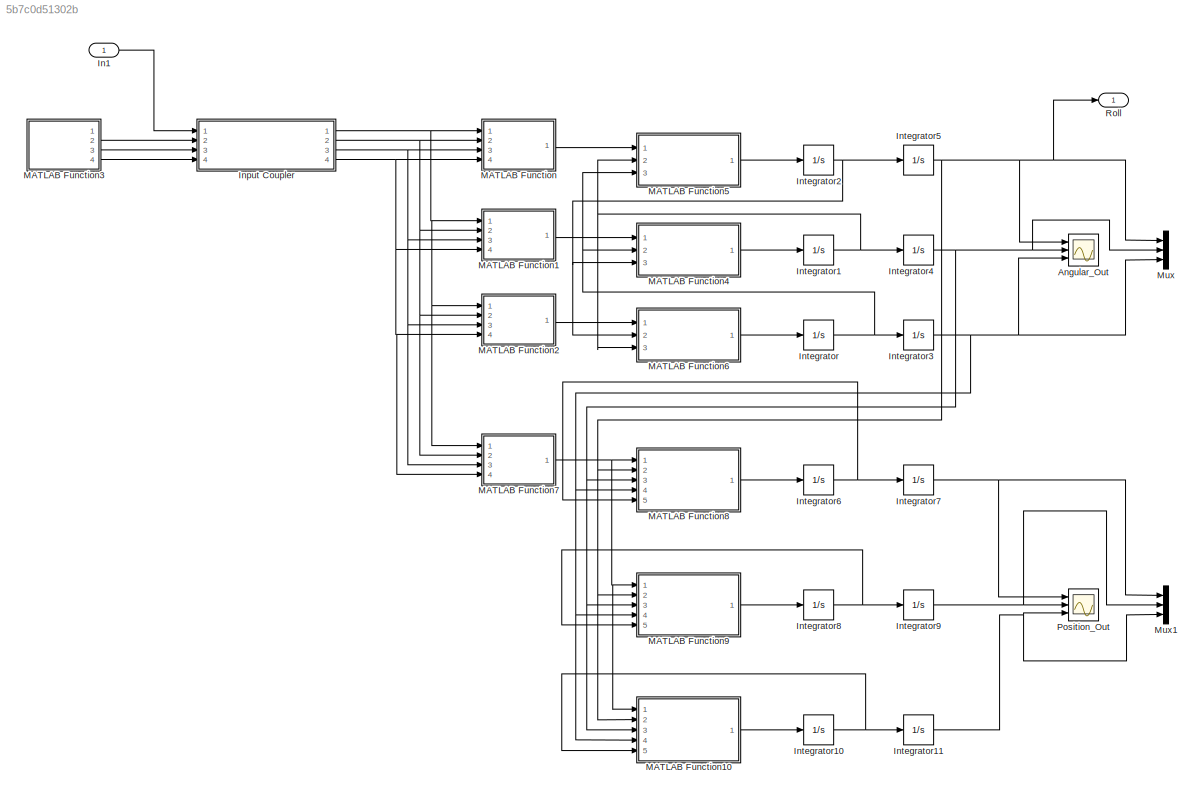
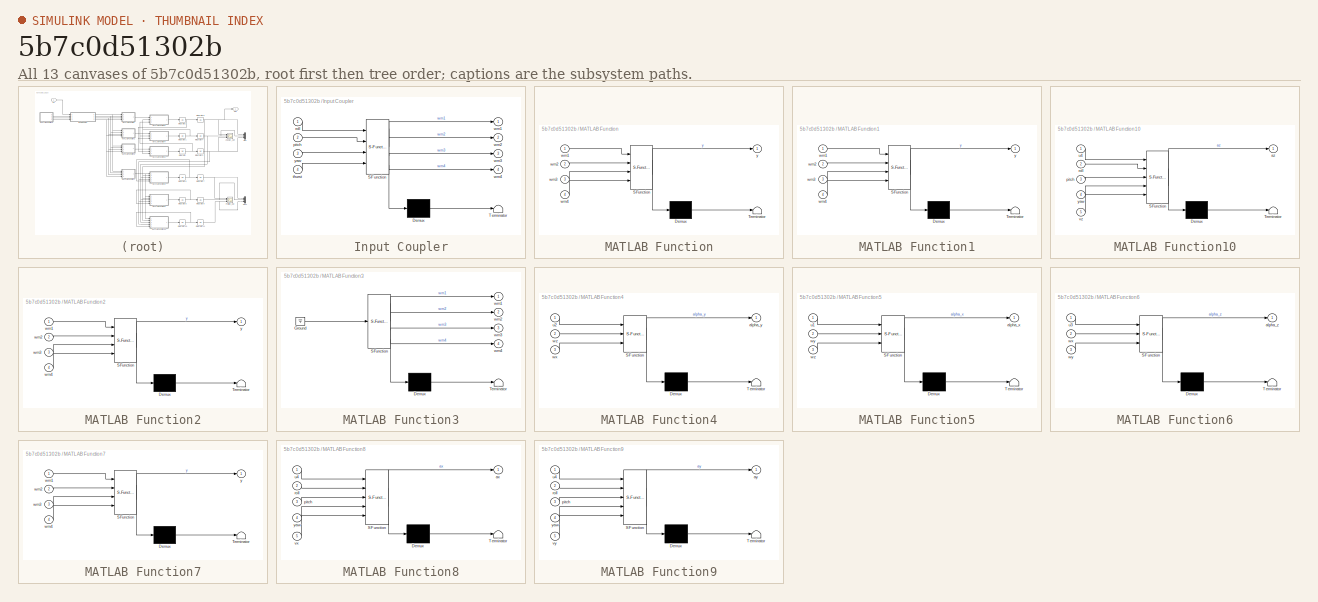
[diagram: thumbnail index - all 13 canvases of the model, root first then tree order]
MODEL slx_5b7c0d51302b
KIND model
BLOCK [Scope] Angular_Out
  Floating = off
  NumInputPorts = 3
  Ports = [3]
  ShowLegends = off
  YMax = 5~5~5
  YMin = -5~-5~-5
BLOCK [Inport] In1
  IconDisplay = Port number
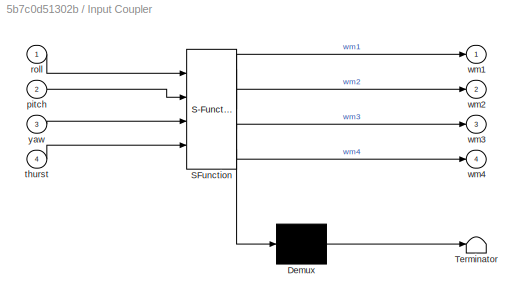
BLOCK [SubSystem] Input Coupler
  ErrorFcn = Stateflow.Translate.translate
  PermitHierarchicalResolution = ExplicitOnly
  Ports = [4, 4]
  RequestExecContextInheritance = off
  SFBlockType = MATLAB Function
  TreatAsAtomicUnit = on
BLOCK [Demux] Input Coupler/ Demux 
  Outputs = 1
  Ports = [1, 1]
BLOCK [S-Function] Input Coupler/ SFunction 
  EnableBusSupport = on
  FunctionName = sf_sfun
  PortCounts = [4 5]
  Ports = [4, 5]
  Tag = Stateflow S-Function quad_x_model 4
BLOCK [Terminator] Input Coupler/ Terminator 
BLOCK [Inport] Input Coupler/pitch
  IconDisplay = Port number
  Port = 2
BLOCK [Inport] Input Coupler/roll
  IconDisplay = Port number
BLOCK [Inport] Input Coupler/thurst
  IconDisplay = Port number
  Port = 4
BLOCK [Outport] Input Coupler/wm1
  IconDisplay = Port number
BLOCK [Outport] Input Coupler/wm2
  IconDisplay = Port number
  Port = 2
BLOCK [Outport] Input Coupler/wm3
  IconDisplay = Port number
  Port = 3
BLOCK [Outport] Input Coupler/wm4
  IconDisplay = Port number
  Port = 4
BLOCK [Inport] Input Coupler/yaw
  IconDisplay = Port number
  Port = 3
BLOCK [Integrator] Integrator
  Ports = [1, 1]
BLOCK [Integrator] Integrator1
  Ports = [1, 1]
BLOCK [Integrator] Integrator10
  Ports = [1, 1]
BLOCK [Integrator] Integrator11
  Ports = [1, 1]
BLOCK [Integrator] Integrator2
  Ports = [1, 1]
BLOCK [Integrator] Integrator3
  Ports = [1, 1]
BLOCK [Integrator] Integrator4
  Ports = [1, 1]
BLOCK [Integrator] Integrator5
  Ports = [1, 1]
BLOCK [Integrator] Integrator6
  Ports = [1, 1]
BLOCK [Integrator] Integrator7
  Ports = [1, 1]
BLOCK [Integrator] Integrator8
  Ports = [1, 1]
BLOCK [Integrator] Integrator9
  Ports = [1, 1]
BLOCK [SubSystem] MATLAB Function
  ErrorFcn = Stateflow.Translate.translate
  PermitHierarchicalResolution = ExplicitOnly
  Ports = [4, 1]
  RequestExecContextInheritance = off
  SFBlockType = MATLAB Function
  TreatAsAtomicUnit = on
BLOCK [Demux] MATLAB Function/ Demux 
  Outputs = 1
  Ports = [1, 1]
BLOCK [S-Function] MATLAB Function/ SFunction 
  EnableBusSupport = on
  FunctionName = sf_sfun
  PortCounts = [4 2]
  Ports = [4, 2]
  Tag = Stateflow S-Function quad_x_model 2
BLOCK [Terminator] MATLAB Function/ Terminator 
BLOCK [Inport] MATLAB Function/wm1
  IconDisplay = Port number
BLOCK [Inport] MATLAB Function/wm2
  IconDisplay = Port number
  Port = 2
BLOCK [Inport] MATLAB Function/wm3
  IconDisplay = Port number
  Port = 3
BLOCK [Inport] MATLAB Function/wm4
  IconDisplay = Port number
  Port = 4
BLOCK [Outport] MATLAB Function/y
  IconDisplay = Port number
BLOCK [SubSystem] MATLAB Function1
  ErrorFcn = Stateflow.Translate.translate
  PermitHierarchicalResolution = ExplicitOnly
  Ports = [4, 1]
  RequestExecContextInheritance = off
  SFBlockType = MATLAB Function
  TreatAsAtomicUnit = on
BLOCK [Demux] MATLAB Function1/ Demux 
  Outputs = 1
  Ports = [1, 1]
BLOCK [S-Function] MATLAB Function1/ SFunction 
  EnableBusSupport = on
  FunctionName = sf_sfun
  PortCounts = [4 2]
  Ports = [4, 2]
  Tag = Stateflow S-Function quad_x_model 1
BLOCK [Terminator] MATLAB Function1/ Terminator 
BLOCK [Inport] MATLAB Function1/wm1
  IconDisplay = Port number
BLOCK [Inport] MATLAB Function1/wm2
  IconDisplay = Port number
  Port = 2
BLOCK [Inport] MATLAB Function1/wm3
  IconDisplay = Port number
  Port = 3
BLOCK [Inport] MATLAB Function1/wm4
  IconDisplay = Port number
  Port = 4
BLOCK [Outport] MATLAB Function1/y
  IconDisplay = Port number
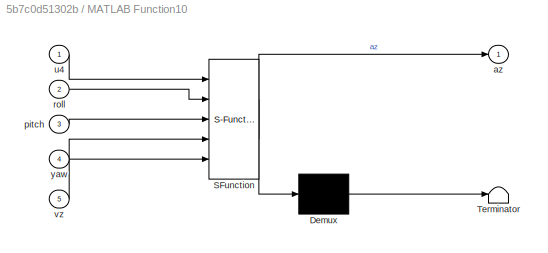
BLOCK [SubSystem] MATLAB Function10
  ErrorFcn = Stateflow.Translate.translate
  PermitHierarchicalResolution = ExplicitOnly
  Ports = [5, 1]
  RequestExecContextInheritance = off
  SFBlockType = MATLAB Function
  TreatAsAtomicUnit = on
BLOCK [Demux] MATLAB Function10/ Demux 
  Outputs = 1
  Ports = [1, 1]
BLOCK [S-Function] MATLAB Function10/ SFunction 
  EnableBusSupport = on
  FunctionName = sf_sfun
  PortCounts = [5 2]
  Ports = [5, 2]
  Tag = Stateflow S-Function quad_x_model 11
BLOCK [Terminator] MATLAB Function10/ Terminator 
BLOCK [Outport] MATLAB Function10/az
  IconDisplay = Port number
BLOCK [Inport] MATLAB Function10/pitch
  IconDisplay = Port number
  Port = 3
BLOCK [Inport] MATLAB Function10/roll
  IconDisplay = Port number
  Port = 2
BLOCK [Inport] MATLAB Function10/u4
  IconDisplay = Port number
BLOCK [Inport] MATLAB Function10/vz
  IconDisplay = Port number
  Port = 5
BLOCK [Inport] MATLAB Function10/yaw
  IconDisplay = Port number
  Port = 4
BLOCK [SubSystem] MATLAB Function2
  ErrorFcn = Stateflow.Translate.translate
  PermitHierarchicalResolution = ExplicitOnly
  Ports = [4, 1]
  RequestExecContextInheritance = off
  SFBlockType = MATLAB Function
  TreatAsAtomicUnit = on
BLOCK [Demux] MATLAB Function2/ Demux 
  Outputs = 1
  Ports = [1, 1]
BLOCK [S-Function] MATLAB Function2/ SFunction 
  EnableBusSupport = on
  FunctionName = sf_sfun
  PortCounts = [4 2]
  Ports = [4, 2]
  Tag = Stateflow S-Function quad_x_model 3
BLOCK [Terminator] MATLAB Function2/ Terminator 
BLOCK [Inport] MATLAB Function2/wm1
  IconDisplay = Port number
BLOCK [Inport] MATLAB Function2/wm2
  IconDisplay = Port number
  Port = 2
BLOCK [Inport] MATLAB Function2/wm3
  IconDisplay = Port number
  Port = 3
BLOCK [Inport] MATLAB Function2/wm4
  IconDisplay = Port number
  Port = 4
BLOCK [Outport] MATLAB Function2/y
  IconDisplay = Port number
BLOCK [SubSystem] MATLAB Function3
  ErrorFcn = Stateflow.Translate.translate
  PermitHierarchicalResolution = ExplicitOnly
  Ports = [0, 4]
  RequestExecContextInheritance = off
  SFBlockType = MATLAB Function
  TreatAsAtomicUnit = on
BLOCK [Demux] MATLAB Function3/ Demux 
  Outputs = 1
  Ports = [1, 1]
BLOCK [Ground] MATLAB Function3/ Ground 
BLOCK [S-Function] MATLAB Function3/ SFunction 
  EnableBusSupport = on
  FunctionName = sf_sfun
  PortCounts = [1 5]
  Ports = [1, 5]
  Tag = Stateflow S-Function quad_x_model 12
BLOCK [Terminator] MATLAB Function3/ Terminator 
BLOCK [Outport] MATLAB Function3/wm1
  IconDisplay = Port number
BLOCK [Outport] MATLAB Function3/wm2
  IconDisplay = Port number
  Port = 2
BLOCK [Outport] MATLAB Function3/wm3
  IconDisplay = Port number
  Port = 3
BLOCK [Outport] MATLAB Function3/wm4
  IconDisplay = Port number
  Port = 4
BLOCK [SubSystem] MATLAB Function4
  ErrorFcn = Stateflow.Translate.translate
  PermitHierarchicalResolution = ExplicitOnly
  Ports = [3, 1]
  RequestExecContextInheritance = off
  SFBlockType = MATLAB Function
  TreatAsAtomicUnit = on
BLOCK [Demux] MATLAB Function4/ Demux 
  Outputs = 1
  Ports = [1, 1]
BLOCK [S-Function] MATLAB Function4/ SFunction 
  EnableBusSupport = on
  FunctionName = sf_sfun
  PortCounts = [3 2]
  Ports = [3, 2]
  Tag = Stateflow S-Function quad_x_model 5
BLOCK [Terminator] MATLAB Function4/ Terminator 
BLOCK [Outport] MATLAB Function4/alpha_y
  IconDisplay = Port number
BLOCK [Inport] MATLAB Function4/u2
  IconDisplay = Port number
BLOCK [Inport] MATLAB Function4/wx
  IconDisplay = Port number
  Port = 3
BLOCK [Inport] MATLAB Function4/wz
  IconDisplay = Port number
  Port = 2
BLOCK [SubSystem] MATLAB Function5
  ErrorFcn = Stateflow.Translate.translate
  PermitHierarchicalResolution = ExplicitOnly
  Ports = [3, 1]
  RequestExecContextInheritance = off
  SFBlockType = MATLAB Function
  TreatAsAtomicUnit = on
BLOCK [Demux] MATLAB Function5/ Demux 
  Outputs = 1
  Ports = [1, 1]
BLOCK [S-Function] MATLAB Function5/ SFunction 
  EnableBusSupport = on
  FunctionName = sf_sfun
  PortCounts = [3 2]
  Ports = [3, 2]
  Tag = Stateflow S-Function quad_x_model 6
BLOCK [Terminator] MATLAB Function5/ Terminator 
BLOCK [Outport] MATLAB Function5/alpha_x
  IconDisplay = Port number
BLOCK [Inport] MATLAB Function5/u1
  IconDisplay = Port number
BLOCK [Inport] MATLAB Function5/wy
  IconDisplay = Port number
  Port = 2
BLOCK [Inport] MATLAB Function5/wz
  IconDisplay = Port number
  Port = 3
BLOCK [SubSystem] MATLAB Function6
  ErrorFcn = Stateflow.Translate.translate
  PermitHierarchicalResolution = ExplicitOnly
  Ports = [3, 1]
  RequestExecContextInheritance = off
  SFBlockType = MATLAB Function
  TreatAsAtomicUnit = on
BLOCK [Demux] MATLAB Function6/ Demux 
  Outputs = 1
  Ports = [1, 1]
BLOCK [S-Function] MATLAB Function6/ SFunction 
  EnableBusSupport = on
  FunctionName = sf_sfun
  PortCounts = [3 2]
  Ports = [3, 2]
  Tag = Stateflow S-Function quad_x_model 7
BLOCK [Terminator] MATLAB Function6/ Terminator 
BLOCK [Outport] MATLAB Function6/alpha_z
  IconDisplay = Port number
BLOCK [Inport] MATLAB Function6/u3
  IconDisplay = Port number
BLOCK [Inport] MATLAB Function6/wx
  IconDisplay = Port number
  Port = 2
BLOCK [Inport] MATLAB Function6/wy
  IconDisplay = Port number
  Port = 3
BLOCK [SubSystem] MATLAB Function7
  ErrorFcn = Stateflow.Translate.translate
  PermitHierarchicalResolution = ExplicitOnly
  Ports = [4, 1]
  RequestExecContextInheritance = off
  SFBlockType = MATLAB Function
  TreatAsAtomicUnit = on
BLOCK [Demux] MATLAB Function7/ Demux 
  Outputs = 1
  Ports = [1, 1]
BLOCK [S-Function] MATLAB Function7/ SFunction 
  EnableBusSupport = on
  FunctionName = sf_sfun
  PortCounts = [4 2]
  Ports = [4, 2]
  Tag = Stateflow S-Function quad_x_model 8
BLOCK [Terminator] MATLAB Function7/ Terminator 
BLOCK [Inport] MATLAB Function7/wm1
  IconDisplay = Port number
BLOCK [Inport] MATLAB Function7/wm2
  IconDisplay = Port number
  Port = 2
BLOCK [Inport] MATLAB Function7/wm3
  IconDisplay = Port number
  Port = 3
BLOCK [Inport] MATLAB Function7/wm4
  IconDisplay = Port number
  Port = 4
BLOCK [Outport] MATLAB Function7/y
  IconDisplay = Port number
BLOCK [SubSystem] MATLAB Function8
  ErrorFcn = Stateflow.Translate.translate
  PermitHierarchicalResolution = ExplicitOnly
  Ports = [5, 1]
  RequestExecContextInheritance = off
  SFBlockType = MATLAB Function
  TreatAsAtomicUnit = on
BLOCK [Demux] MATLAB Function8/ Demux 
  Outputs = 1
  Ports = [1, 1]
BLOCK [S-Function] MATLAB Function8/ SFunction 
  EnableBusSupport = on
  FunctionName = sf_sfun
  PortCounts = [5 2]
  Ports = [5, 2]
  Tag = Stateflow S-Function quad_x_model 9
BLOCK [Terminator] MATLAB Function8/ Terminator 
BLOCK [Outport] MATLAB Function8/ax
  IconDisplay = Port number
BLOCK [Inport] MATLAB Function8/pitch
  IconDisplay = Port number
  Port = 3
BLOCK [Inport] MATLAB Function8/roll
  IconDisplay = Port number
  Port = 2
BLOCK [Inport] MATLAB Function8/u4
  IconDisplay = Port number
BLOCK [Inport] MATLAB Function8/vx
  IconDisplay = Port number
  Port = 5
BLOCK [Inport] MATLAB Function8/yaw
  IconDisplay = Port number
  Port = 4
BLOCK [SubSystem] MATLAB Function9
  ErrorFcn = Stateflow.Translate.translate
  PermitHierarchicalResolution = ExplicitOnly
  Ports = [5, 1]
  RequestExecContextInheritance = off
  SFBlockType = MATLAB Function
  TreatAsAtomicUnit = on
BLOCK [Demux] MATLAB Function9/ Demux 
  Outputs = 1
  Ports = [1, 1]
BLOCK [S-Function] MATLAB Function9/ SFunction 
  EnableBusSupport = on
  FunctionName = sf_sfun
  PortCounts = [5 2]
  Ports = [5, 2]
  Tag = Stateflow S-Function quad_x_model 10
BLOCK [Terminator] MATLAB Function9/ Terminator 
BLOCK [Outport] MATLAB Function9/ay
  IconDisplay = Port number
BLOCK [Inport] MATLAB Function9/pitch
  IconDisplay = Port number
  Port = 3
BLOCK [Inport] MATLAB Function9/roll
  IconDisplay = Port number
  Port = 2
BLOCK [Inport] MATLAB Function9/u4
  IconDisplay = Port number
BLOCK [Inport] MATLAB Function9/vy
  IconDisplay = Port number
  Port = 5
BLOCK [Inport] MATLAB Function9/yaw
  IconDisplay = Port number
  Port = 4
BLOCK [Mux] Mux
  DisplayOption = bar
  Inputs = 3
  Ports = [3, 1]
BLOCK [Mux] Mux1
  DisplayOption = bar
  Inputs = 3
  Ports = [3, 1]
BLOCK [Scope] Position_Out 
  Floating = off
  NumInputPorts = 3
  Ports = [3]
  SaveName = ScopeData1
  ShowLegends = off
  YMax = 5~5~5
  YMin = -5~-5~-5
BLOCK [Outport] Roll
  IconDisplay = Port number
LINE In1:1 -> Input Coupler:1
NET Input Coupler:1 -> MATLAB Function1:1, MATLAB Function2:1, MATLAB Function7:1, MATLAB Function:1
NET Input Coupler:2 -> MATLAB Function1:2, MATLAB Function2:2, MATLAB Function7:2, MATLAB Function:2
NET Input Coupler:3 -> MATLAB Function1:3, MATLAB Function2:3, MATLAB Function7:3, MATLAB Function:3
NET Input Coupler:4 -> MATLAB Function1:4, MATLAB Function2:4, MATLAB Function7:4, MATLAB Function:4
NET Integrator10:1 -> Integrator11:1, MATLAB Function10:5
NET Integrator11:1 -> Mux1:3, Position_Out :3
NET Integrator1:1 -> Integrator4:1, MATLAB Function5:2, MATLAB Function6:3
NET Integrator2:1 -> Integrator5:1, MATLAB Function4:3, MATLAB Function6:2
NET Integrator3:1 -> Angular_Out:3, MATLAB Function10:4, MATLAB Function8:4, MATLAB Function9:4, Mux:3
NET Integrator4:1 -> Angular_Out:2, MATLAB Function10:3, MATLAB Function8:3, MATLAB Function9:3, Mux:2
NET Integrator5:1 -> Angular_Out:1, MATLAB Function10:2, MATLAB Function8:2, MATLAB Function9:2, Mux:1, Roll:1
NET Integrator6:1 -> Integrator7:1, MATLAB Function8:5
NET Integrator7:1 -> Mux1:1, Position_Out :1
NET Integrator8:1 -> Integrator9:1, MATLAB Function9:5
NET Integrator9:1 -> Mux1:2, Position_Out :2
NET Integrator:1 -> Integrator3:1, MATLAB Function4:2, MATLAB Function5:3
LINE MATLAB Function10:1 -> Integrator10:1
LINE MATLAB Function1:1 -> MATLAB Function4:1
LINE MATLAB Function2:1 -> MATLAB Function6:1
LINE MATLAB Function3:2 -> Input Coupler:2
LINE MATLAB Function3:3 -> Input Coupler:3
LINE MATLAB Function3:4 -> Input Coupler:4
LINE MATLAB Function4:1 -> Integrator1:1
LINE MATLAB Function5:1 -> Integrator2:1
LINE MATLAB Function6:1 -> Integrator:1
NET MATLAB Function7:1 -> MATLAB Function10:1, MATLAB Function8:1, MATLAB Function9:1
LINE MATLAB Function8:1 -> Integrator6:1
LINE MATLAB Function9:1 -> Integrator8:1
LINE MATLAB Function:1 -> MATLAB Function5:1
note: NET lines group one-source signal fan-out (src -> all destinations, sorted); 1:1 wires keep LINE
CHART MATLAB Function1 states=1 transitions=1
  STATE_LABEL 'eML_blk_kernel()'
  STATE_LABEL 'SCRIPT:\nfunction y = u2(wm1, wm2, wm3, wm4)\n%#codegen\n\nk1 = 3.1 * 10^-7;\ny = k1 * (wm2^2 + wm4^2 - wm1^2 - wm3^2);\nreturn;'
CHART MATLAB Function states=1 transitions=1
  STATE_LABEL 'eML_blk_kernel()'
  STATE_LABEL 'SCRIPT:\nfunction y = u1(wm1, wm2, wm3, wm4)\n%#codegen\n\nk1 = 3.1 * 10^-7;\ny = k1 * (wm2^2 + wm3^2 - wm1^2 - wm4^2);\nreturn;'
CHART MATLAB Function2 states=1 transitions=1
  STATE_LABEL 'eML_blk_kernel()'
  STATE_LABEL 'SCRIPT:\nfunction y = u3(wm1, wm2, wm3, wm4)\n%#codegen\n\nk2 = 3.1 * 10^-7;\ny = k2 * (wm1^2 + wm2^2 - wm3^2 - wm4^2);\nreturn;'
CHART Input Coupler states=1 transitions=1
  STATE_LABEL 'eML_blk_kernel()'
  STATE_LABEL 'SCRIPT:\nfunction [wm1, wm2, wm3, wm4] = input_coupler(roll, pitch, yaw, thurst)\n%#codegen\n\n% 控制耦合\n% 输入是归一化的，-1~1\n\n% 基础输入 1000\nthurst_bias = 1407;\n\n% 去归一化\nroll  = roll  * 500;\npitch = pitch * 500;\nyaw   = yaw   * 500;\nthurst = thurst * 1000;\n\nwm1 = thurst + thurst_bias - roll - pitch + yaw;\nwm2 = thurst + thurst_bias + roll + pitch + yaw;\nwm3 = thurst + thurst_bias + roll - pitch - yaw;\nwm4 = thurs...<+47ch>'
CHART MATLAB Function4 states=1 transitions=1
  STATE_LABEL 'eML_blk_kernel()'
  STATE_LABEL 'SCRIPT:\nfunction alpha_y = calc_pitch_a(u2, wz, wx)\n%#codegen\n\nl = 0.25;\nJx = 0.033;\nJy = 0.033;\nJz = 0.061;\n\nalpha_y = u2 * (sqrt(2) / 2) * l + (Jz - Jx) * wz * wx;\nalpha_y = alpha_y / Jy;\n\n\nreturn;'
CHART MATLAB Function5 states=1 transitions=1
  STATE_LABEL 'eML_blk_kernel()'
  STATE_LABEL 'SCRIPT:\nfunction alpha_x = calc_roll_a(u1, wy, wz)\n%#codegen\n\nl = 0.25;\nJx = 0.033;\nJy = 0.033;\nJz = 0.061;\n\nalpha_x = u1 * (sqrt(2) / 2) * l + (Jy - Jz) * wy * wz;\nalpha_x = alpha_x / Jx;\n\n\nreturn;'
CHART MATLAB Function6 states=1 transitions=1
  STATE_LABEL 'eML_blk_kernel()'
  STATE_LABEL 'SCRIPT:\nfunction alpha_z = calc_yaw_a(u3, wx, wy)\n%#codegen\n\nl = 0.25;\nJx = 0.033;\nJy = 0.033;\nJz = 0.061;\n\nalpha_z = u3 * l + (Jx - Jy) * wx * wy;\nalpha_z = alpha_z / Jz;\n\n\nreturn;'
CHART MATLAB Function7 states=1 transitions=1
  STATE_LABEL 'eML_blk_kernel()'
  STATE_LABEL 'SCRIPT:\nfunction y = u4(wm1, wm2, wm3, wm4)\n%#codegen\n\nk1 = 3.1 * 10^-7;\ny = k1 * (wm1^2 + wm2^2 + wm3^2 + wm4^2);\nreturn;'
CHART MATLAB Function8 states=1 transitions=1
  STATE_LABEL 'eML_blk_kernel()'
  STATE_LABEL 'SCRIPT:\nfunction ax = calc_ax(u4, roll, pitch, yaw, vx)\n%#codegen\n% roll  -> alpha\n% pitch -> beta\n% yaw   -> gamma\n\nm  = 0.25;\ng  = 9.81;\nkf = 0;\n\nax = u4 * (sin(roll) * sin(yaw) + cos(roll) * sin(pitch) * cos(yaw));\nax = ax - kf * vx;\nax = ax / m;\n\nreturn;'
CHART MATLAB Function9 states=1 transitions=1
  STATE_LABEL 'eML_blk_kernel()'
  STATE_LABEL 'SCRIPT:\nfunction ay = calc_ay(u4, roll, pitch, yaw, vy)\n%#codegen\n% roll  -> alpha\n% pitch -> beta\n% yaw   -> gamma\n\nm  = 0.25;\ng  = 9.81;\nkf = 0;\n\nay = u4 * (-sin(roll) * cos(yaw) + cos(roll) * sin(pitch) * sin(yaw));\nay = ay - kf * vy;\nay = ay / m;\n\nreturn;'
CHART MATLAB Function10 states=1 transitions=1
  STATE_LABEL 'eML_blk_kernel()'
  STATE_LABEL 'SCRIPT:\nfunction az = calc_az(u4, roll, pitch, yaw, vz)\n%#codegen\n% roll  -> alpha\n% pitch -> beta\n% yaw   -> gamma\n\nm  = 0.25;\ng  = 9.81;\nkf = 0;\n\naz = u4 * (cos(roll) * cos(pitch));\naz = az / m - g;\n\nreturn;'
CHART MATLAB Function3 states=1 transitions=1
  STATE_LABEL 'eML_blk_kernel()'
  STATE_LABEL 'SCRIPT:\nfunction [wm1, wm2, wm3, wm4] = fcn\n%#codegen\n\n% 1406 - 1407平飞\n\nwm1 = 0;\nwm2 = 0;\nwm3 = 0;\nwm4 = 0;'
